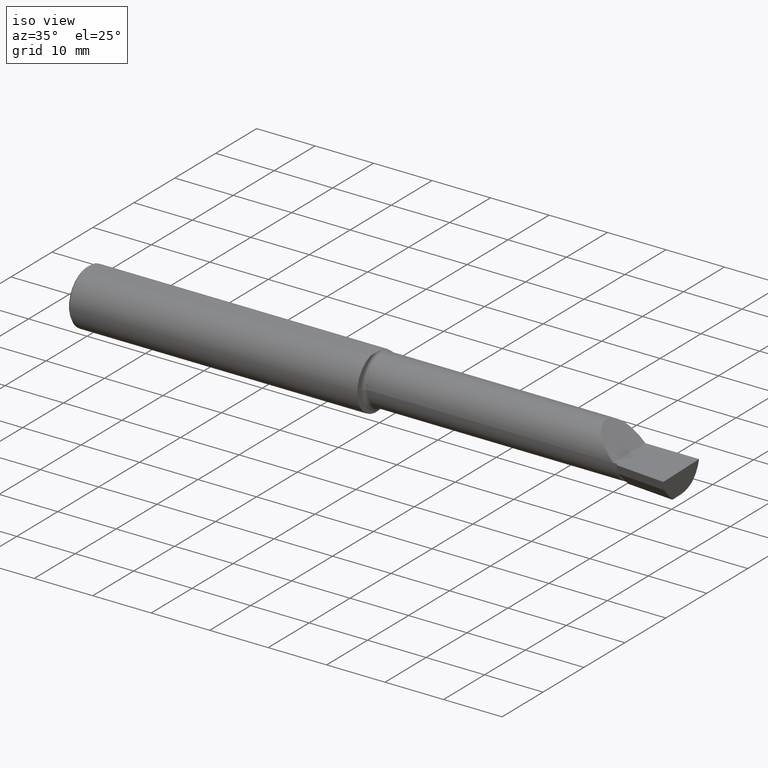
[diagram: clean part render]
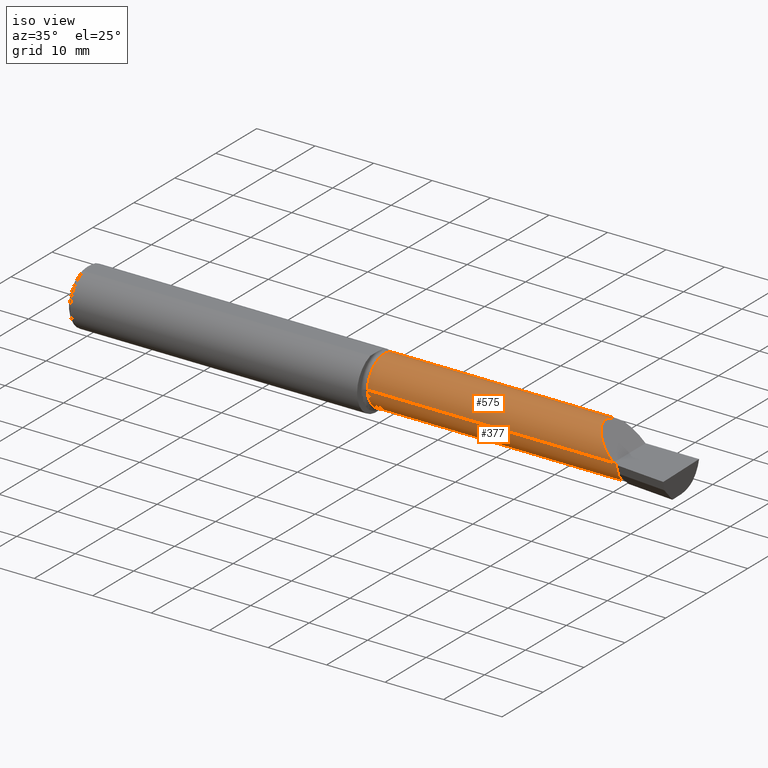
[diagram: same view with one multi-face feature highlighted, each face labeled with its STEP entity id]
A machine part, iso view. The highlighted faces form ONE feature: a constant-radius fillet chain: 2 tangent blend faces with common blend radius 4.0653 mm. The faces share edges in the B-rep.
Their STEP definitions:
[1] entity #575 (Cylinder):
#10 = VERTEX_POINT ( 'NONE', #544 ) ;
#35 = CYLINDRICAL_SURFACE ( 'NONE', #566, 0.1600500000000000811 ) ;
#68 = CARTESIAN_POINT ( 'NONE',  ( 3.629999999999999893, -0.1226500000000001755, -7.715274834628322913E-17 ) ) ;
#74 = DIRECTION ( 'NONE',  ( -1.000000000000000000, 4.268512490100411279E-18, -0.000000000000000000 ) ) ;
#122 = VECTOR ( 'NONE', #158, 39.37007874015748143 ) ;
#142 = CARTESIAN_POINT ( 'NONE',  ( -6.831754240405711811E-19, -0.1226500000000000784, 0.000000000000000000 ) ) ;
#158 = DIRECTION ( 'NONE',  ( 1.000000000000000000, -4.268512490100411279E-18, 0.000000000000000000 ) ) ;
#212 = LINE ( 'NONE', #650, #122 ) ;
#217 = VERTEX_POINT ( 'NONE', #400 ) ;
#247 = DIRECTION ( 'NONE',  ( -4.268512490100411279E-18, -1.000000000000000000, 0.000000000000000000 ) ) ;
#271 =( BOUNDED_CURVE ( )  B_SPLINE_CURVE ( 3, ( #600, #655, #386, #324 ),
 .UNSPECIFIED., .F., .T. ) 
 B_SPLINE_CURVE_WITH_KNOTS ( ( 4, 4 ),
 ( 5.541729662751375685, 7.853981633974485455 ),
 .UNSPECIFIED. ) 
 CURVE ( )  GEOMETRIC_REPRESENTATION_ITEM ( )  RATIONAL_B_SPLINE_CURVE ( ( 1.000000000000000000, 0.6019254882129680961, 0.6019254882129680961, 1.000000000000000000 ) ) 
 REPRESENTATION_ITEM ( '' )  );
#295 = EDGE_CURVE ( 'NONE', #10, #217, #327, .T. ) ;
#306 = ORIENTED_EDGE ( 'NONE', *, *, #646, .F. ) ;
#324 = CARTESIAN_POINT ( 'NONE',  ( 3.629999999999999893, -0.1226500000000001755, -7.715274834628322913E-17 ) ) ;
#327 = CIRCLE ( 'NONE', #428, 0.1600500000000001921 ) ;
#369 = EDGE_CURVE ( 'NONE', #458, #10, #634, .T. ) ;
#378 = VERTEX_POINT ( 'NONE', #410 ) ;
#386 = CARTESIAN_POINT ( 'NONE',  ( 3.467758842172326439, -0.1226500000000005086, 0.1622411578276714561 ) ) ;
#400 = CARTESIAN_POINT ( 'NONE',  ( 1.975000000000000089, 0.1454917112299453641, 0.1180346748349067193 ) ) ;
#410 = CARTESIAN_POINT ( 'NONE',  ( 3.511965325165093965, 0.1454917112299477233, 0.1180346748349040964 ) ) ;
#428 = AXIS2_PLACEMENT_3D ( 'NONE', #582, #74, #534 ) ;
#446 = ORIENTED_EDGE ( 'NONE', *, *, #295, .F. ) ;
#458 = VERTEX_POINT ( 'NONE', #68 ) ;
#463 = EDGE_LOOP ( 'NONE', ( #617, #532, #306, #446 ) ) ;
#529 = CARTESIAN_POINT ( 'NONE',  ( 0.000000000000000000, 0.03740000000000000269, 0.000000000000000000 ) ) ;
#530 = DIRECTION ( 'NONE',  ( -1.000000000000000000, 4.268512490100411279E-18, -0.000000000000000000 ) ) ;
#532 = ORIENTED_EDGE ( 'NONE', *, *, #647, .F. ) ;
#534 = DIRECTION ( 'NONE',  ( 0.000000000000000000, -1.000000000000000000, 0.000000000000000000 ) ) ;
#544 = CARTESIAN_POINT ( 'NONE',  ( 1.975000000000000089, -0.1226500000000001894, 0.000000000000000000 ) ) ;
#548 = VECTOR ( 'NONE', #530, 39.37007874015748143 ) ;
#566 = AXIS2_PLACEMENT_3D ( 'NONE', #529, #682, #247 ) ;
#575 = ADVANCED_FACE ( 'NONE', ( #630 ), #35, .T. ) ;
#582 = CARTESIAN_POINT ( 'NONE',  ( 1.975000000000000089, 0.03739999999999999575, 0.000000000000000000 ) ) ;
#600 = CARTESIAN_POINT ( 'NONE',  ( 3.511965325165093965, 0.1454917112299477233, 0.1180346748349040964 ) ) ;
#617 = ORIENTED_EDGE ( 'NONE', *, *, #369, .F. ) ;
#630 = FACE_OUTER_BOUND ( 'NONE', #463, .T. ) ;
#634 = LINE ( 'NONE', #142, #548 ) ;
#646 = EDGE_CURVE ( 'NONE', #217, #378, #212, .T. ) ;
#647 = EDGE_CURVE ( 'NONE', #378, #458, #271, .T. ) ;
#650 = CARTESIAN_POINT ( 'NONE',  ( 2.817500000000000338, 0.1454917112299461412, 0.1180346748349058866 ) ) ;
#655 = CARTESIAN_POINT ( 'NONE',  ( 3.402393788885672343, 0.02584108761840385807, 0.2276062111143238587 ) ) ;
#682 = DIRECTION ( 'NONE',  ( -1.000000000000000000, 4.268512490100411279E-18, -0.000000000000000000 ) ) ;
[2] entity #377 (Cylinder):
#10 = VERTEX_POINT ( 'NONE', #544 ) ;
#29 = CARTESIAN_POINT ( 'NONE',  ( 3.659999999999999698, -0.1038634330788594656, -0.07523725788978889717 ) ) ;
#32 = AXIS2_PLACEMENT_3D ( 'NONE', #670, #404, #453 ) ;
#33 = FACE_OUTER_BOUND ( 'NONE', #571, .T. ) ;
#36 = CARTESIAN_POINT ( 'NONE',  ( 3.658696733852337513, -0.03937063256198262279, -0.1404363566730252033 ) ) ;
#61 = DIRECTION ( 'NONE',  ( 0.000000000000000000, -1.000000000000000000, 0.000000000000000000 ) ) ;
#68 = CARTESIAN_POINT ( 'NONE',  ( 3.629999999999999893, -0.1226500000000001755, -7.715274834628322913E-17 ) ) ;
#72 = EDGE_CURVE ( 'NONE', #599, #340, #375, .T. ) ;
#77 = CARTESIAN_POINT ( 'NONE',  ( 3.656051771408124651, -0.03882109269545381408, -0.1407350259470294407 ) ) ;
#86 = ORIENTED_EDGE ( 'NONE', *, *, #475, .F. ) ;
#102 = VECTOR ( 'NONE', #707, 39.37007874015748143 ) ;
#109 = VERTEX_POINT ( 'NONE', #505 ) ;
#114 = VECTOR ( 'NONE', #305, 39.37007874015748143 ) ;
#120 = ORIENTED_EDGE ( 'NONE', *, *, #369, .T. ) ;
#121 = CARTESIAN_POINT ( 'NONE',  ( 3.659999999999999698, -0.1226499999999999813, 0.000000000000000000 ) ) ;
#128 = DIRECTION ( 'NONE',  ( 0.000000000000000000, -1.000000000000000000, 0.000000000000000000 ) ) ;
#142 = CARTESIAN_POINT ( 'NONE',  ( -6.831754240405711811E-19, -0.1226500000000000784, 0.000000000000000000 ) ) ;
#153 = ORIENTED_EDGE ( 'NONE', *, *, #72, .T. ) ;
#164 = VERTEX_POINT ( 'NONE', #456 ) ;
#174 = CARTESIAN_POINT ( 'NONE',  ( 3.975476519002682618, 0.03739999999999996799, -0.1600499999999999701 ) ) ;
#181 = DIRECTION ( 'NONE',  ( -4.268512490100411279E-18, -1.000000000000000000, 0.000000000000000000 ) ) ;
#193 = DIRECTION ( 'NONE',  ( -1.000000000000000000, 4.268512490100411279E-18, -0.000000000000000000 ) ) ;
#194 = CIRCLE ( 'NONE', #601, 0.1600499999999999701 ) ;
#195 = EDGE_CURVE ( 'NONE', #109, #10, #626, .T. ) ;
#198 = CARTESIAN_POINT ( 'NONE',  ( 3.977555437944266803, 0.1454917112299461412, -0.1180346748349058866 ) ) ;
#204 =( BOUNDED_CURVE ( )  B_SPLINE_CURVE ( 3, ( #662, #341, #234, #677 ),
 .UNSPECIFIED., .F., .F. ) 
 B_SPLINE_CURVE_WITH_KNOTS ( ( 4, 4 ),
 ( 6.060671081087566137, 6.802126725515762473 ),
 .UNSPECIFIED. ) 
 CURVE ( )  GEOMETRIC_REPRESENTATION_ITEM ( )  RATIONAL_B_SPLINE_CURVE ( ( 1.000000000000000000, 0.9547092712975357998, 0.9547092712975357998, 1.000000000000000000 ) ) 
 REPRESENTATION_ITEM ( '' )  );
#210 = DIRECTION ( 'NONE',  ( -1.000000000000000000, -0.000000000000000000, -0.000000000000000000 ) ) ;
#227 = ORIENTED_EDGE ( 'NONE', *, *, #702, .F. ) ;
#228 =( BOUNDED_CURVE ( )  B_SPLINE_CURVE ( 3, ( #354, #240, #526, #29 ),
 .UNSPECIFIED., .F., .T. ) 
 B_SPLINE_CURVE_WITH_KNOTS ( ( 4, 4 ),
 ( 2.836913096765500963, 2.852002354478645252 ),
 .UNSPECIFIED. ) 
 CURVE ( )  GEOMETRIC_REPRESENTATION_ITEM ( )  RATIONAL_B_SPLINE_CURVE ( ( 1.000000000000000000, 0.9999810262818066287, 0.9999810262818066287, 1.000000000000000000 ) ) 
 REPRESENTATION_ITEM ( '' )  );
#234 = CARTESIAN_POINT ( 'NONE',  ( 3.975117649406746612, 0.1156304438478833047, -0.1453804992321584277 ) ) ;
#240 = CARTESIAN_POINT ( 'NONE',  ( 3.653205481862503934, -0.1046149184608682614, -0.07381336932430714037 ) ) ;
#242 = CIRCLE ( 'NONE', #437, 0.1600499999999999701 ) ;
#244 = DIRECTION ( 'NONE',  ( -1.000000000000000000, 4.268512490100411279E-18, -0.000000000000000000 ) ) ;
#250 = ORIENTED_EDGE ( 'NONE', *, *, #706, .T. ) ;
#253 = ORIENTED_EDGE ( 'NONE', *, *, #325, .T. ) ;
#257 = EDGE_CURVE ( 'NONE', #164, #506, #242, .T. ) ;
#260 = EDGE_CURVE ( 'NONE', #614, #109, #683, .T. ) ;
#263 = LINE ( 'NONE', #379, #102 ) ;
#267 = EDGE_CURVE ( 'NONE', #340, #164, #228, .T. ) ;
#290 = CARTESIAN_POINT ( 'NONE',  ( 3.656051771408124651, -0.03882109269545381408, -0.1407350259470294407 ) ) ;
#292 = VERTEX_POINT ( 'NONE', #469 ) ;
#300 = CARTESIAN_POINT ( 'NONE',  ( 3.649681144494221208, -0.1049825828457492949, -0.07309721336804403391 ) ) ;
#305 = DIRECTION ( 'NONE',  ( -1.000000000000000000, 4.268512490100411279E-18, -0.000000000000000000 ) ) ;
#317 = ORIENTED_EDGE ( 'NONE', *, *, #195, .F. ) ;
#321 = CARTESIAN_POINT ( 'NONE',  ( 3.651110695703067677, -0.09013612589549345466, -0.1020159202418930017 ) ) ;
#325 = EDGE_CURVE ( 'NONE', #292, #599, #414, .T. ) ;
#340 = VERTEX_POINT ( 'NONE', #300 ) ;
#341 = CARTESIAN_POINT ( 'NONE',  ( 3.974391802280965447, 0.07789060880782619489, -0.1600500000000000811 ) ) ;
#349 = DIRECTION ( 'NONE',  ( -1.000000000000000000, 4.268512490100411279E-18, -0.000000000000000000 ) ) ;
#352 = VERTEX_POINT ( 'NONE', #686 ) ;
#354 = CARTESIAN_POINT ( 'NONE',  ( 3.649681144494221208, -0.1049825828457492949, -0.07309721336804403391 ) ) ;
#364 = CARTESIAN_POINT ( 'NONE',  ( 2.817500000000000338, 0.1454917112299461412, -0.1180346748349058866 ) ) ;
#369 = EDGE_CURVE ( 'NONE', #458, #10, #634, .T. ) ;
#373 = ORIENTED_EDGE ( 'NONE', *, *, #515, .T. ) ;
#375 =( BOUNDED_CURVE ( )  B_SPLINE_CURVE ( 3, ( #498, #438, #321, #496 ),
 .UNSPECIFIED., .F., .T. ) 
 B_SPLINE_CURVE_WITH_KNOTS ( ( 4, 4 ),
 ( 5.208754709233144098, 5.808886397676656266 ),
 .UNSPECIFIED. ) 
 CURVE ( )  GEOMETRIC_REPRESENTATION_ITEM ( )  RATIONAL_B_SPLINE_CURVE ( ( 1.000000000000000000, 0.9702113525044580022, 0.9702113525044580022, 1.000000000000000000 ) ) 
 REPRESENTATION_ITEM ( '' )  );
#377 = ADVANCED_FACE ( 'NONE', ( #33 ), #678, .T. ) ;
#379 = CARTESIAN_POINT ( 'NONE',  ( -6.831754240404898105E-19, -0.1226500000000000368, 5.059984255808939247E-16 ) ) ;
#391 = CARTESIAN_POINT ( 'NONE',  ( 3.659999999999999698, 0.03739999999999998881, 0.000000000000000000 ) ) ;
#404 = DIRECTION ( 'NONE',  ( -1.000000000000000000, 4.268512490100411279E-18, -0.000000000000000000 ) ) ;
#414 =( BOUNDED_CURVE ( )  B_SPLINE_CURVE ( 3, ( #418, #36, #465, #290 ),
 .UNSPECIFIED., .F., .F. ) 
 B_SPLINE_CURVE_WITH_KNOTS ( ( 4, 4 ),
 ( 3.431182952700939204, 3.437044785209013131 ),
 .UNSPECIFIED. ) 
 CURVE ( )  GEOMETRIC_REPRESENTATION_ITEM ( )  RATIONAL_B_SPLINE_CURVE ( ( 1.000000000000000000, 0.9999971365786870514, 0.9999971365786870514, 1.000000000000000000 ) ) 
 REPRESENTATION_ITEM ( '' )  );
#418 = CARTESIAN_POINT ( 'NONE',  ( 3.659999999999999698, -0.03964474360533823405, -0.1402858153299459121 ) ) ;
#437 = AXIS2_PLACEMENT_3D ( 'NONE', #521, #193, #128 ) ;
#438 = CARTESIAN_POINT ( 'NONE',  ( 3.653299437670631811, -0.06740517145637069107, -0.1252540914590504484 ) ) ;
#453 = DIRECTION ( 'NONE',  ( 0.000000000000000000, -1.000000000000000000, 0.000000000000000000 ) ) ;
#456 = CARTESIAN_POINT ( 'NONE',  ( 3.659999999999999698, -0.1038634330788594656, -0.07523725788978889717 ) ) ;
#458 = VERTEX_POINT ( 'NONE', #68 ) ;
#465 = CARTESIAN_POINT ( 'NONE',  ( 3.657380653886553645, -0.03909608147253235827, -0.1405860939741473414 ) ) ;
#469 = CARTESIAN_POINT ( 'NONE',  ( 3.659999999999999698, -0.03964474360533823405, -0.1402858153299459121 ) ) ;
#475 = EDGE_CURVE ( 'NONE', #484, #614, #204, .T. ) ;
#477 = ORIENTED_EDGE ( 'NONE', *, *, #260, .F. ) ;
#479 = CARTESIAN_POINT ( 'NONE',  ( 0.000000000000000000, 0.03740000000000000269, 0.000000000000000000 ) ) ;
#484 = VERTEX_POINT ( 'NONE', #174 ) ;
#495 = CARTESIAN_POINT ( 'NONE',  ( 4.000000000000000000, 0.03739999999999996799, -0.1600499999999999701 ) ) ;
#496 = CARTESIAN_POINT ( 'NONE',  ( 3.649681144494221208, -0.1049825828457492949, -0.07309721336804403391 ) ) ;
#498 = CARTESIAN_POINT ( 'NONE',  ( 3.656051771408124651, -0.03882109269545381408, -0.1407350259470294407 ) ) ;
#505 = CARTESIAN_POINT ( 'NONE',  ( 1.975000000000000089, 0.1454917112299455306, -0.1180346748349065666 ) ) ;
#506 = VERTEX_POINT ( 'NONE', #121 ) ;
#515 = EDGE_CURVE ( 'NONE', #352, #292, #194, .T. ) ;
#521 = CARTESIAN_POINT ( 'NONE',  ( 3.659999999999999698, 0.03739999999999998881, 0.000000000000000000 ) ) ;
#526 = CARTESIAN_POINT ( 'NONE',  ( 3.656645165628020333, -0.1042418614602932669, -0.07452673103334613025 ) ) ;
#530 = DIRECTION ( 'NONE',  ( -1.000000000000000000, 4.268512490100411279E-18, -0.000000000000000000 ) ) ;
#540 = VECTOR ( 'NONE', #210, 39.37007874015748143 ) ;
#544 = CARTESIAN_POINT ( 'NONE',  ( 1.975000000000000089, -0.1226500000000001894, 0.000000000000000000 ) ) ;
#548 = VECTOR ( 'NONE', #530, 39.37007874015748143 ) ;
#571 = EDGE_LOOP ( 'NONE', ( #227, #120, #317, #477, #86, #250, #373, #253, #153, #586, #688 ) ) ;
#586 = ORIENTED_EDGE ( 'NONE', *, *, #267, .T. ) ;
#599 = VERTEX_POINT ( 'NONE', #77 ) ;
#601 = AXIS2_PLACEMENT_3D ( 'NONE', #391, #349, #61 ) ;
#614 = VERTEX_POINT ( 'NONE', #198 ) ;
#626 = CIRCLE ( 'NONE', #32, 0.1600500000000001921 ) ;
#634 = LINE ( 'NONE', #142, #548 ) ;
#662 = CARTESIAN_POINT ( 'NONE',  ( 3.975476519002682618, 0.03739999999999996799, -0.1600499999999999701 ) ) ;
#669 = AXIS2_PLACEMENT_3D ( 'NONE', #479, #244, #181 ) ;
#670 = CARTESIAN_POINT ( 'NONE',  ( 1.975000000000000089, 0.03739999999999999575, 0.000000000000000000 ) ) ;
#677 = CARTESIAN_POINT ( 'NONE',  ( 3.977555437944266803, 0.1454917112299461412, -0.1180346748349058866 ) ) ;
#678 = CYLINDRICAL_SURFACE ( 'NONE', #669, 0.1600500000000000811 ) ;
#683 = LINE ( 'NONE', #364, #114 ) ;
#686 = CARTESIAN_POINT ( 'NONE',  ( 3.659999999999999698, 0.03739999999999996799, -0.1600499999999999701 ) ) ;
#688 = ORIENTED_EDGE ( 'NONE', *, *, #257, .T. ) ;
#700 = LINE ( 'NONE', #495, #540 ) ;
#702 = EDGE_CURVE ( 'NONE', #458, #506, #263, .T. ) ;
#706 = EDGE_CURVE ( 'NONE', #484, #352, #700, .T. ) ;
#707 = DIRECTION ( 'NONE',  ( 1.000000000000000000, -4.268512490100411279E-18, 0.000000000000000000 ) ) ;